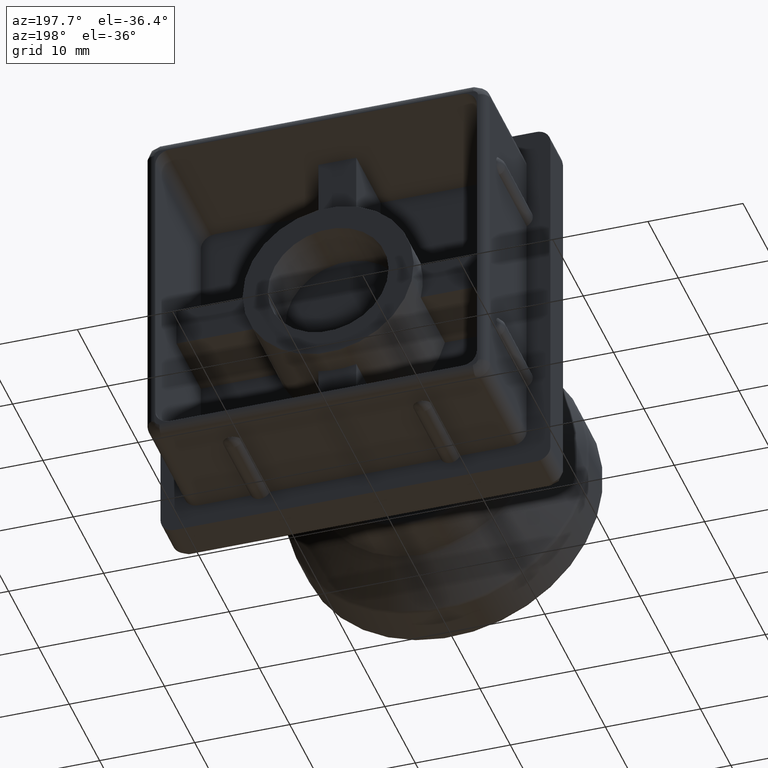
[diagram: clean part render]
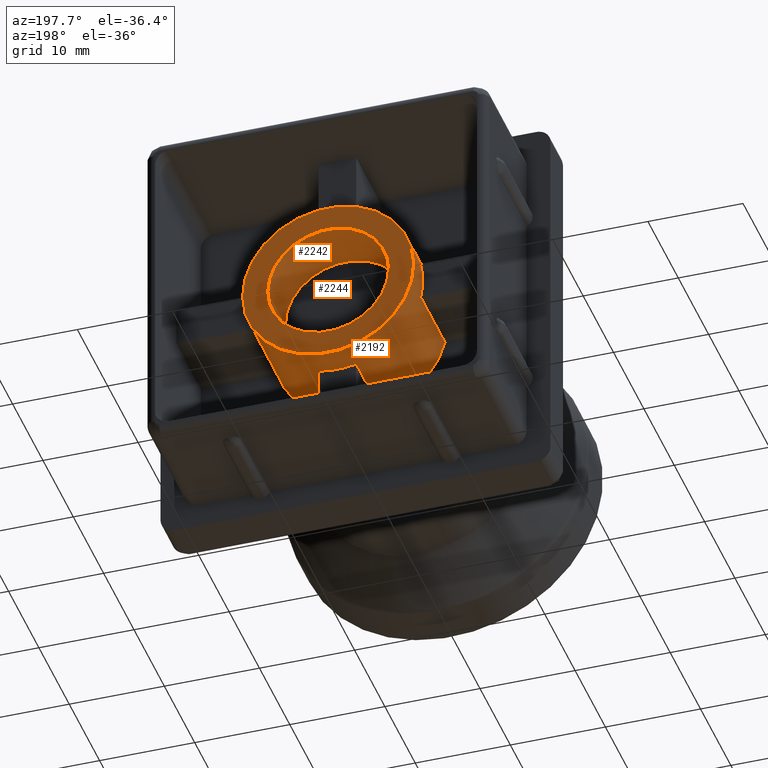
[diagram: same view with one multi-face feature highlighted, each face labeled with its STEP entity id]
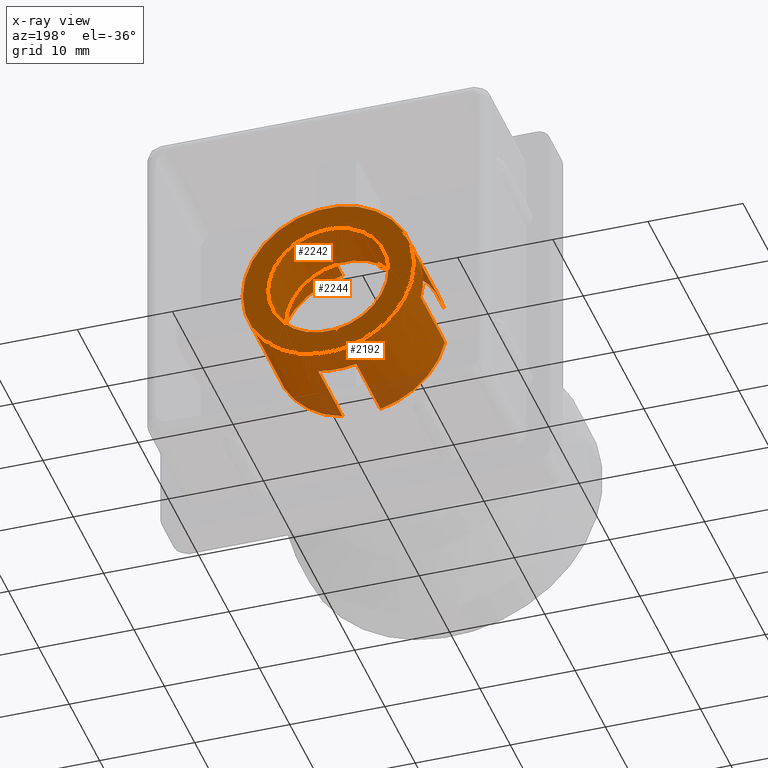
[diagram: x-ray of the same camera — body ghosted, the whole feature saturated]
A machine part, auxiliary view. The highlighted faces form ONE feature: a stepped (counterbored) hole: 2 coaxial cylindrical walls of radii 6.35 -> 9 mm joined by 1 annular planar shoulder face(s). The faces share edges in the B-rep.
The next image is the same camera in x-ray: the body ghosted and the whole hole feature saturated, so the bore chain is visible through the body.
Their STEP definitions:
[1] entity #2192 (Cylinder):
#62=FACE_BOUND('',#464,.T.);
#124=CIRCLE('',#2357,9.);
#125=CIRCLE('',#2361,9.);
#126=CIRCLE('',#2365,9.);
#127=CIRCLE('',#2369,9.);
#129=CIRCLE('',#2372,9.);
#132=CIRCLE('',#2376,9.);
#133=CIRCLE('',#2378,9.);
#135=CIRCLE('',#2381,9.);
#136=CIRCLE('',#2382,9.);
#317=FACE_OUTER_BOUND('',#463,.T.);
#463=EDGE_LOOP('',(#1774));
#464=EDGE_LOOP('',(#1775,#1776,#1777,#1778,#1779,#1780,#1781,#1782,#1783,
#1784,#1785,#1786,#1787,#1788,#1789,#1790));
#611=LINE('',#4406,#779);
#613=LINE('',#4411,#781);
#620=LINE('',#4427,#788);
#622=LINE('',#4432,#790);
#629=LINE('',#4448,#797);
#631=LINE('',#4453,#799);
#643=LINE('',#4493,#811);
#644=LINE('',#4496,#812);
#779=VECTOR('',#2782,8.);
#781=VECTOR('',#2786,8.);
#788=VECTOR('',#2799,8.);
#790=VECTOR('',#2803,8.);
#797=VECTOR('',#2816,8.);
#799=VECTOR('',#2820,8.);
#811=VECTOR('',#2860,8.);
#812=VECTOR('',#2863,8.);
#1032=VERTEX_POINT('',#4396);
#1033=VERTEX_POINT('',#4398);
#1035=VERTEX_POINT('',#4404);
#1037=VERTEX_POINT('',#4410);
#1040=VERTEX_POINT('',#4417);
#1041=VERTEX_POINT('',#4419);
#1043=VERTEX_POINT('',#4425);
#1045=VERTEX_POINT('',#4431);
#1048=VERTEX_POINT('',#4438);
#1049=VERTEX_POINT('',#4440);
#1051=VERTEX_POINT('',#4446);
#1053=VERTEX_POINT('',#4452);
#1054=VERTEX_POINT('',#4456);
#1063=VERTEX_POINT('',#4479);
#1066=VERTEX_POINT('',#4490);
#1067=VERTEX_POINT('',#4492);
#1068=VERTEX_POINT('',#4494);
#1292=EDGE_CURVE('',#1033,#1032,#124,.T.);
#1296=EDGE_CURVE('',#1032,#1035,#611,.T.);
#1298=EDGE_CURVE('',#1037,#1033,#613,.T.);
#1302=EDGE_CURVE('',#1041,#1040,#125,.T.);
#1306=EDGE_CURVE('',#1040,#1043,#620,.T.);
#1308=EDGE_CURVE('',#1045,#1041,#622,.T.);
#1312=EDGE_CURVE('',#1049,#1048,#126,.T.);
#1316=EDGE_CURVE('',#1048,#1051,#629,.T.);
#1318=EDGE_CURVE('',#1053,#1049,#631,.T.);
#1320=EDGE_CURVE('',#1053,#1054,#127,.T.);
#1325=EDGE_CURVE('',#1045,#1051,#129,.T.);
#1333=EDGE_CURVE('',#1063,#1035,#132,.T.);
#1334=EDGE_CURVE('',#1037,#1043,#133,.T.);
#1338=EDGE_CURVE('',#1066,#1066,#135,.T.);
#1339=EDGE_CURVE('',#1063,#1067,#643,.T.);
#1340=EDGE_CURVE('',#1067,#1068,#136,.T.);
#1341=EDGE_CURVE('',#1068,#1054,#644,.T.);
#1774=ORIENTED_EDGE('',*,*,#1338,.F.);
#1775=ORIENTED_EDGE('',*,*,#1298,.T.);
#1776=ORIENTED_EDGE('',*,*,#1292,.T.);
#1777=ORIENTED_EDGE('',*,*,#1296,.T.);
#1778=ORIENTED_EDGE('',*,*,#1333,.F.);
#1779=ORIENTED_EDGE('',*,*,#1339,.T.);
#1780=ORIENTED_EDGE('',*,*,#1340,.T.);
#1781=ORIENTED_EDGE('',*,*,#1341,.T.);
#1782=ORIENTED_EDGE('',*,*,#1320,.F.);
#1783=ORIENTED_EDGE('',*,*,#1318,.T.);
#1784=ORIENTED_EDGE('',*,*,#1312,.T.);
#1785=ORIENTED_EDGE('',*,*,#1316,.T.);
#1786=ORIENTED_EDGE('',*,*,#1325,.F.);
#1787=ORIENTED_EDGE('',*,*,#1308,.T.);
#1788=ORIENTED_EDGE('',*,*,#1302,.T.);
#1789=ORIENTED_EDGE('',*,*,#1306,.T.);
#1790=ORIENTED_EDGE('',*,*,#1334,.F.);
#2092=CYLINDRICAL_SURFACE('',#2380,9.);
#2192=ADVANCED_FACE('',(#317,#62),#2092,.T.);
#2357=AXIS2_PLACEMENT_3D('',#4399,#2775,#2776);
#2361=AXIS2_PLACEMENT_3D('',#4420,#2792,#2793);
#2365=AXIS2_PLACEMENT_3D('',#4441,#2809,#2810);
#2369=AXIS2_PLACEMENT_3D('',#4457,#2824,#2825);
#2372=AXIS2_PLACEMENT_3D('',#4466,#2833,#2834);
#2376=AXIS2_PLACEMENT_3D('',#4481,#2846,#2847);
#2378=AXIS2_PLACEMENT_3D('',#4483,#2850,#2851);
#2380=AXIS2_PLACEMENT_3D('',#4489,#2856,#2857);
#2381=AXIS2_PLACEMENT_3D('',#4491,#2858,#2859);
#2382=AXIS2_PLACEMENT_3D('',#4495,#2861,#2862);
#2775=DIRECTION('center_axis',(0.,1.,0.));
#2776=DIRECTION('ref_axis',(-1.,0.,0.));
#2782=DIRECTION('',(0.,-1.,0.));
#2786=DIRECTION('',(0.,1.,0.));
#2792=DIRECTION('center_axis',(0.,1.,0.));
#2793=DIRECTION('ref_axis',(-1.,0.,0.));
#2799=DIRECTION('',(0.,-1.,0.));
#2803=DIRECTION('',(0.,1.,0.));
#2809=DIRECTION('center_axis',(0.,1.,0.));
#2810=DIRECTION('ref_axis',(-1.,0.,0.));
#2816=DIRECTION('',(0.,-1.,0.));
#2820=DIRECTION('',(0.,1.,0.));
#2824=DIRECTION('center_axis',(0.,-1.,0.));
#2825=DIRECTION('ref_axis',(-1.,0.,0.));
#2833=DIRECTION('center_axis',(0.,-1.,0.));
#2834=DIRECTION('ref_axis',(-1.,0.,0.));
#2846=DIRECTION('center_axis',(0.,-1.,0.));
#2847=DIRECTION('ref_axis',(-1.,0.,0.));
#2850=DIRECTION('center_axis',(0.,-1.,0.));
#2851=DIRECTION('ref_axis',(-1.,0.,0.));
#2856=DIRECTION('center_axis',(0.,1.,0.));
#2857=DIRECTION('ref_axis',(-1.,0.,0.));
#2858=DIRECTION('center_axis',(0.,1.,0.));
#2859=DIRECTION('ref_axis',(-1.,0.,0.));
#2860=DIRECTION('',(0.,1.,0.));
#2861=DIRECTION('center_axis',(0.,1.,0.));
#2862=DIRECTION('ref_axis',(-1.,0.,0.));
#2863=DIRECTION('',(0.,-1.,0.));
#4396=CARTESIAN_POINT('',(2.,6.,8.77496438739212));
#4398=CARTESIAN_POINT('',(-2.,6.,8.77496438739212));
#4399=CARTESIAN_POINT('Origin',(0.,6.,0.));
#4404=CARTESIAN_POINT('',(2.,-2.,8.77496438739212));
#4406=CARTESIAN_POINT('',(2.,-2.,8.77496438739212));
#4410=CARTESIAN_POINT('',(-2.,-2.,8.77496438739212));
#4411=CARTESIAN_POINT('',(-2.,-2.,8.77496438739212));
#4417=CARTESIAN_POINT('',(-8.77496438739212,6.,2.));
#4419=CARTESIAN_POINT('',(-8.77496438739212,6.,-2.));
#4420=CARTESIAN_POINT('Origin',(0.,6.,0.));
#4425=CARTESIAN_POINT('',(-8.77496438739212,-2.,2.));
#4427=CARTESIAN_POINT('',(-8.77496438739212,-2.,2.));
#4431=CARTESIAN_POINT('',(-8.77496438739212,-2.,-2.));
#4432=CARTESIAN_POINT('',(-8.77496438739212,-2.,-2.));
#4438=CARTESIAN_POINT('',(-2.,6.,-8.77496438739212));
#4440=CARTESIAN_POINT('',(2.,6.,-8.77496438739212));
#4441=CARTESIAN_POINT('Origin',(0.,6.,0.));
#4446=CARTESIAN_POINT('',(-2.,-2.,-8.77496438739212));
#4448=CARTESIAN_POINT('',(-2.,-2.,-8.77496438739212));
#4452=CARTESIAN_POINT('',(2.,-2.,-8.77496438739212));
#4453=CARTESIAN_POINT('',(2.,-2.,-8.77496438739212));
#4456=CARTESIAN_POINT('',(8.77496438739212,-2.,-2.));
#4457=CARTESIAN_POINT('Origin',(0.,-2.,0.));
#4466=CARTESIAN_POINT('Origin',(0.,-2.,0.));
#4479=CARTESIAN_POINT('',(8.77496438739212,-2.,2.));
#4481=CARTESIAN_POINT('Origin',(0.,-2.,0.));
#4483=CARTESIAN_POINT('Origin',(0.,-2.,0.));
#4489=CARTESIAN_POINT('Origin',(0.,-2.,0.));
#4490=CARTESIAN_POINT('',(9.,9.,-1.10218211923262E-15));
#4491=CARTESIAN_POINT('Origin',(0.,9.,0.));
#4492=CARTESIAN_POINT('',(8.77496438739212,6.,2.));
#4493=CARTESIAN_POINT('',(8.77496438739212,-2.,2.));
#4494=CARTESIAN_POINT('',(8.77496438739212,6.,-2.));
#4495=CARTESIAN_POINT('Origin',(0.,6.,0.));
#4496=CARTESIAN_POINT('',(8.77496438739212,-2.,-2.));
[2] entity #2242 (Cylinder):
#69=FACE_BOUND('',#521,.T.);
#178=CIRCLE('',#2466,6.35);
#179=CIRCLE('',#2467,6.35);
#367=FACE_OUTER_BOUND('',#520,.T.);
#520=EDGE_LOOP('',(#2060));
#521=EDGE_LOOP('',(#2061));
#1116=VERTEX_POINT('',#4748);
#1117=VERTEX_POINT('',#4750);
#1432=EDGE_CURVE('',#1116,#1116,#178,.T.);
#1433=EDGE_CURVE('',#1117,#1117,#179,.T.);
#2060=ORIENTED_EDGE('',*,*,#1432,.T.);
#2061=ORIENTED_EDGE('',*,*,#1433,.F.);
#2115=CYLINDRICAL_SURFACE('',#2465,6.35);
#2242=ADVANCED_FACE('',(#367,#69),#2115,.F.);
#2465=AXIS2_PLACEMENT_3D('',#4747,#3077,#3078);
#2466=AXIS2_PLACEMENT_3D('',#4749,#3079,#3080);
#2467=AXIS2_PLACEMENT_3D('',#4751,#3081,#3082);
#3077=DIRECTION('center_axis',(0.,-1.,0.));
#3078=DIRECTION('ref_axis',(-1.,0.,0.));
#3079=DIRECTION('center_axis',(0.,-1.,0.));
#3080=DIRECTION('ref_axis',(-1.,0.,0.));
#3081=DIRECTION('center_axis',(0.,-1.,0.));
#3082=DIRECTION('ref_axis',(-1.,0.,0.));
#4747=CARTESIAN_POINT('Origin',(0.,9.,0.));
#4748=CARTESIAN_POINT('',(6.35,3.2,-7.77650717458569E-16));
#4749=CARTESIAN_POINT('Origin',(0.,3.2,0.));
#4750=CARTESIAN_POINT('',(6.35,9.,-7.77650717458569E-16));
#4751=CARTESIAN_POINT('Origin',(0.,9.,0.));
[3] entity #2244 (Plane):
#71=FACE_BOUND('',#525,.T.);
#135=CIRCLE('',#2381,9.);
#179=CIRCLE('',#2467,6.35);
#240=PLANE('',#2469);
#369=FACE_OUTER_BOUND('',#524,.T.);
#524=EDGE_LOOP('',(#2064));
#525=EDGE_LOOP('',(#2065));
#1066=VERTEX_POINT('',#4490);
#1117=VERTEX_POINT('',#4750);
#1338=EDGE_CURVE('',#1066,#1066,#135,.T.);
#1433=EDGE_CURVE('',#1117,#1117,#179,.T.);
#2064=ORIENTED_EDGE('',*,*,#1338,.T.);
#2065=ORIENTED_EDGE('',*,*,#1433,.T.);
#2244=ADVANCED_FACE('',(#369,#71),#240,.T.);
#2381=AXIS2_PLACEMENT_3D('',#4491,#2858,#2859);
#2467=AXIS2_PLACEMENT_3D('',#4751,#3081,#3082);
#2469=AXIS2_PLACEMENT_3D('',#4753,#3085,#3086);
#2858=DIRECTION('center_axis',(0.,1.,0.));
#2859=DIRECTION('ref_axis',(-1.,0.,0.));
#3081=DIRECTION('center_axis',(0.,-1.,0.));
#3082=DIRECTION('ref_axis',(-1.,0.,0.));
#3085=DIRECTION('center_axis',(0.,1.,0.));
#3086=DIRECTION('ref_axis',(0.,0.,1.));
#4490=CARTESIAN_POINT('',(9.,9.,-1.10218211923262E-15));
#4491=CARTESIAN_POINT('Origin',(0.,9.,0.));
#4750=CARTESIAN_POINT('',(6.35,9.,-7.77650717458569E-16));
#4751=CARTESIAN_POINT('Origin',(0.,9.,0.));
#4753=CARTESIAN_POINT('Origin',(-5.03042222760184E-16,9.,-2.05596856412066E-16));